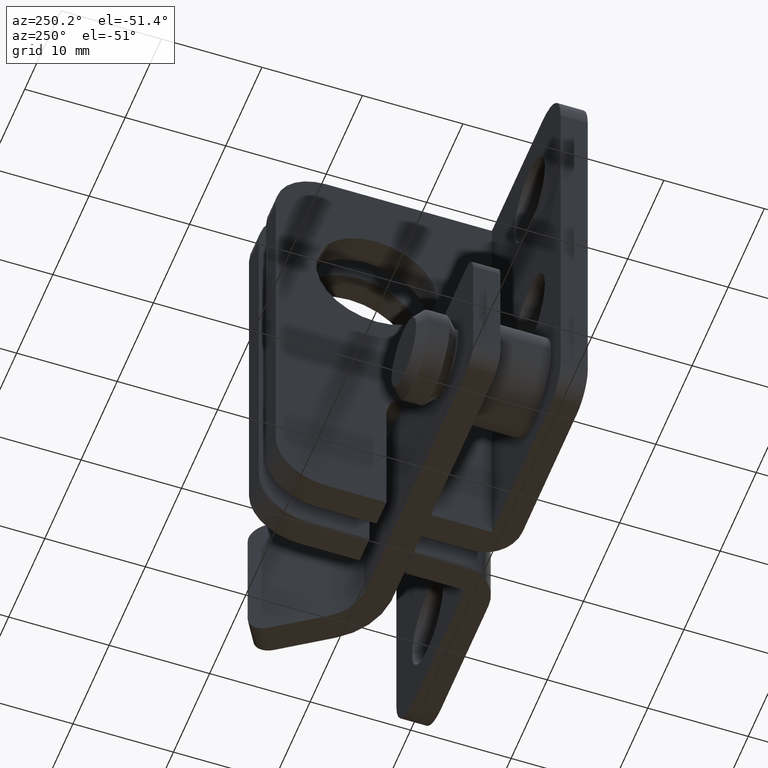
[diagram: clean part render]
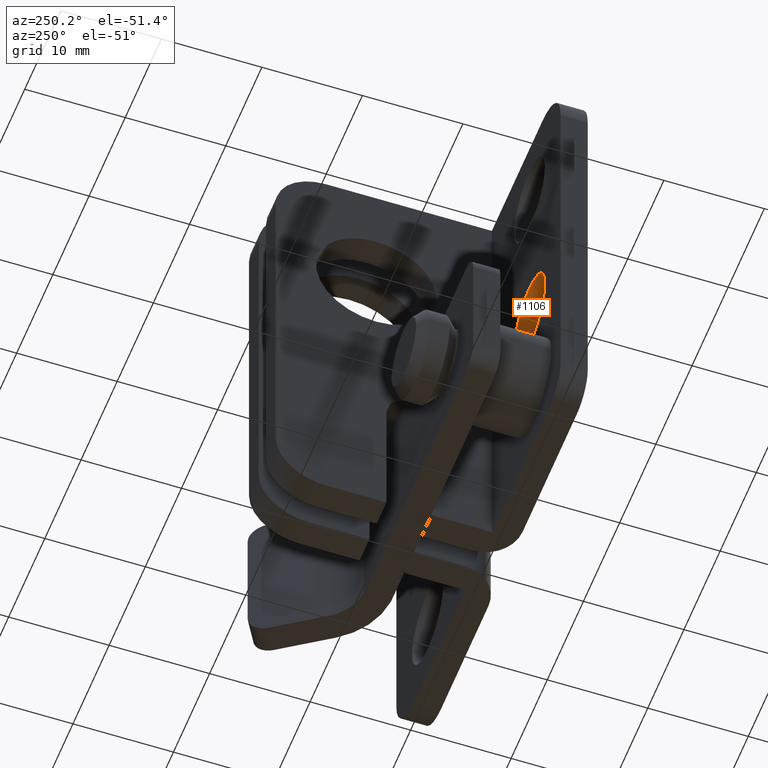
[diagram: same view with one face highlighted and labeled with its STEP entity id]
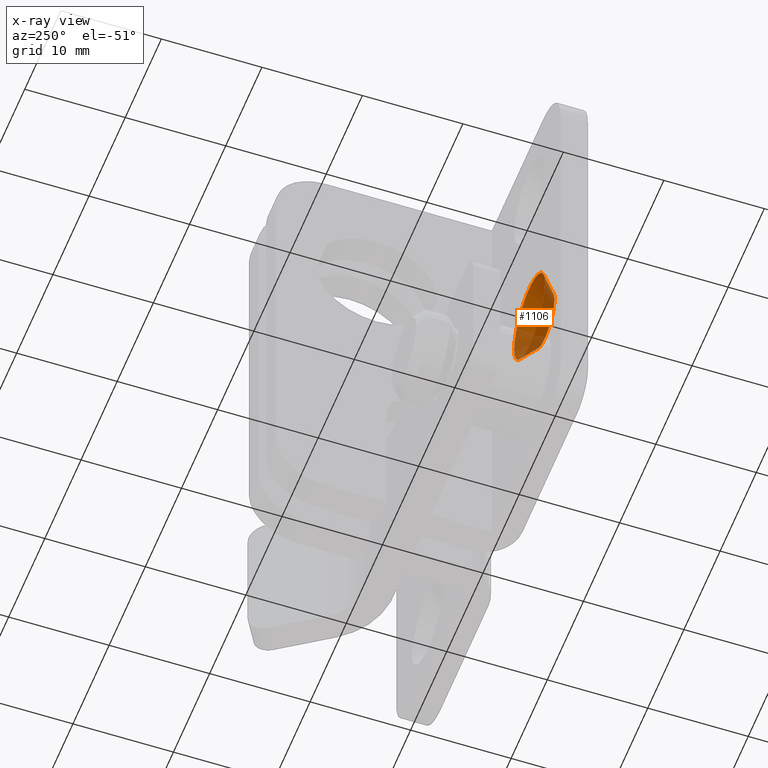
[diagram: x-ray of the same camera — body ghosted, the highlighted face saturated]
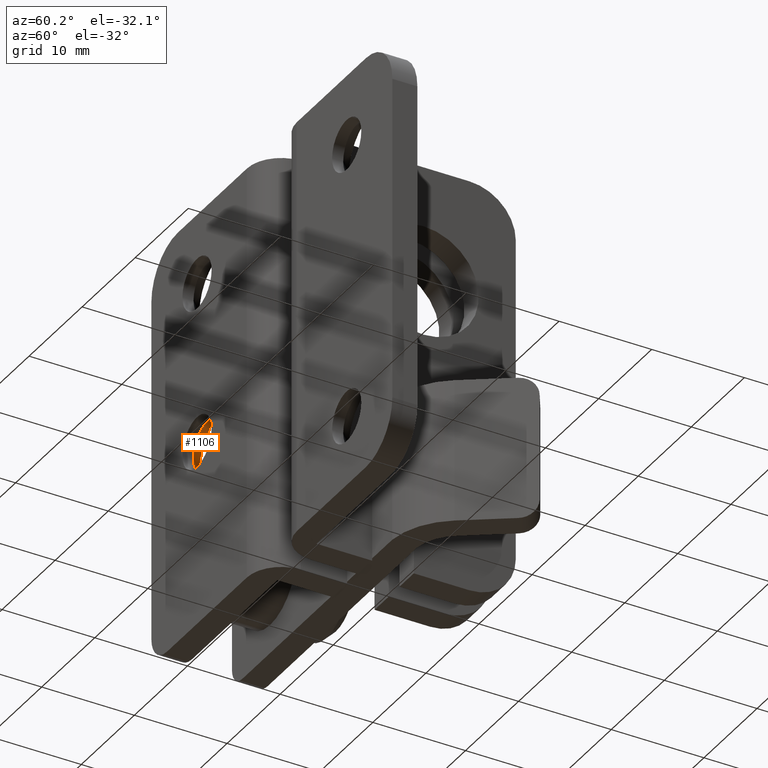
[diagram: same view with one face highlighted and labeled with its STEP entity id]
A machine part, auxiliary view. The second image highlights one B-rep face of the part: STEP entity #1106.
The next image is the same camera in x-ray: the body ghosted, the highlighted face saturated — about 27% of this face is hidden behind the body in this view.
A second angle (auxiliary view) of the same face is appended — the face is thin or edge-on in the first view.
In plain terms, the highlighted conical surface has half-angle 45 deg.
Its self-contained STEP definition (entity closure, byte-faithful):
#39=CONICAL_SURFACE('',#1182,3.5,45.);
#47=FACE_BOUND('',#184,.T.);
#115=FACE_OUTER_BOUND('',#183,.T.);
#183=EDGE_LOOP('',(#799));
#184=EDGE_LOOP('',(#800));
#459=CIRCLE('',#1183,4.25);
#460=CIRCLE('',#1184,2.75);
#527=VERTEX_POINT('',#1707);
#528=VERTEX_POINT('',#1709);
#640=EDGE_CURVE('',#527,#527,#459,.T.);
#641=EDGE_CURVE('',#528,#528,#460,.T.);
#799=ORIENTED_EDGE('',*,*,#640,.F.);
#800=ORIENTED_EDGE('',*,*,#641,.F.);
#1106=ADVANCED_FACE('',(#115,#47),#39,.F.);
#1182=AXIS2_PLACEMENT_3D('',#1706,#1344,#1345);
#1183=AXIS2_PLACEMENT_3D('',#1708,#1346,#1347);
#1184=AXIS2_PLACEMENT_3D('',#1710,#1348,#1349);
#1344=DIRECTION('center_axis',(-4.09029535388216E-16,1.,0.));
#1345=DIRECTION('ref_axis',(1.,4.09029535388216E-16,0.));
#1346=DIRECTION('center_axis',(4.09029535388216E-16,-1.,0.));
#1347=DIRECTION('ref_axis',(1.,4.09029535388216E-16,0.));
#1348=DIRECTION('center_axis',(-4.09029535388216E-16,1.,0.));
#1349=DIRECTION('ref_axis',(1.,4.09029535388216E-16,0.));
#1706=CARTESIAN_POINT('Origin',(8.6,1.95,-25.1));
#1707=CARTESIAN_POINT('',(12.85,2.70000000000001,-25.1));
#1708=CARTESIAN_POINT('Origin',(8.6,2.7,-25.1));
#1709=CARTESIAN_POINT('',(11.35,1.2,-25.1));
#1710=CARTESIAN_POINT('Origin',(8.6,1.2,-25.1));